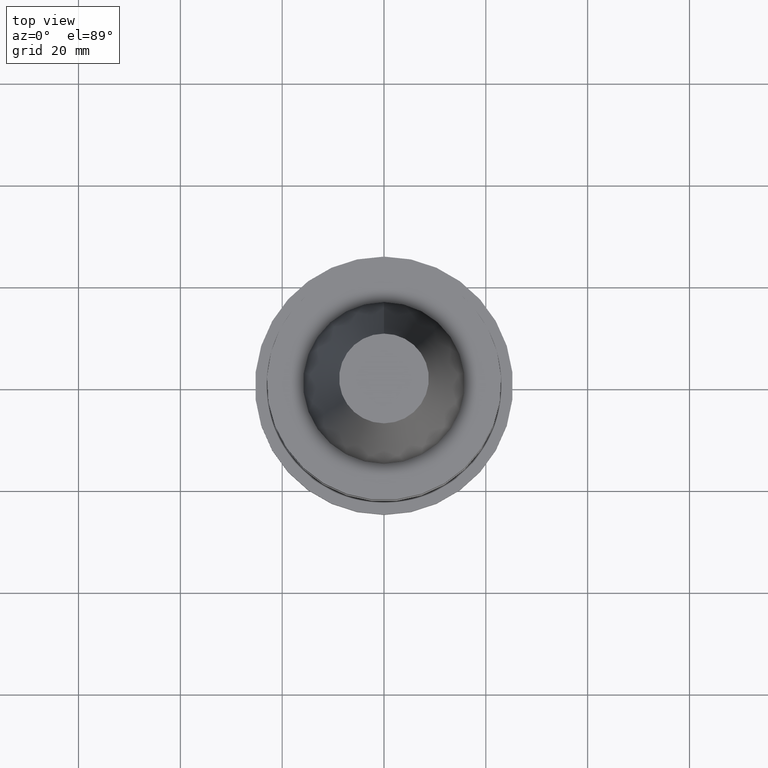
[diagram: clean part render]
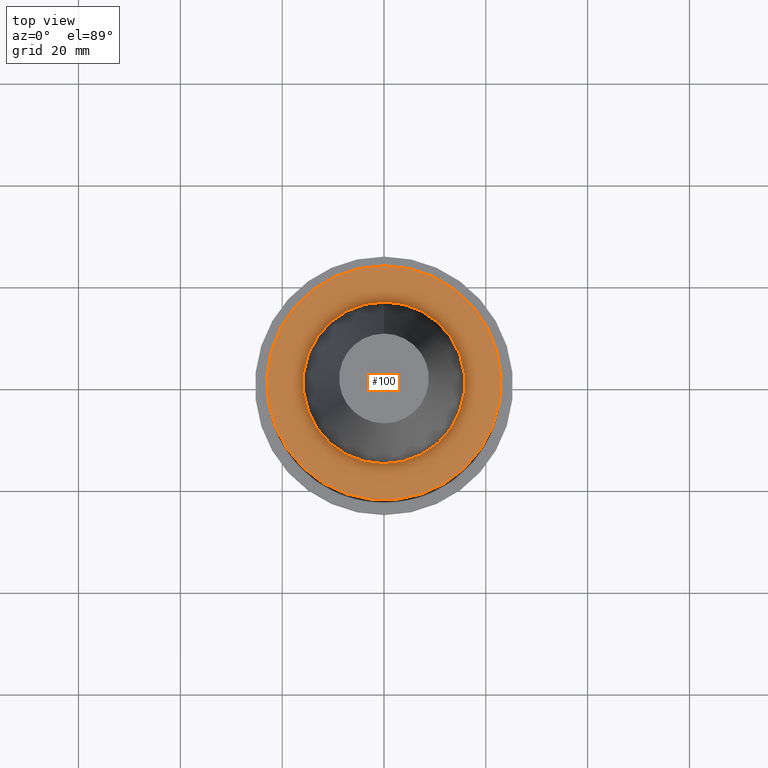
[diagram: same view with one face highlighted and labeled with its STEP entity id]
A machine part, top view. The second image highlights one B-rep face of the part: STEP entity #100.
In plain terms, the highlighted planar face has unit normal (-0, -0, 1).
Its self-contained STEP definition (entity closure, byte-faithful):
#92=EDGE_CURVE('Unnamed[1]',#230,#230,#231,.T.);
#100=ADVANCED_FACE('Unnamed[1]',(#242,#243),#244,.T.);
#121=EDGE_CURVE('Unnamed[1]',#277,#277,#278,.T.);
#230=VERTEX_POINT('',#413);
#231=CIRCLE('',#414,23.0);
#242=FACE_OUTER_BOUND('',#428,.T.);
#243=FACE_BOUND('',#429,.T.);
#244=PLANE('',#430);
#277=VERTEX_POINT('',#471);
#278=CIRCLE('',#472,15.875);
#413=CARTESIAN_POINT('',(6.12323399573674E-017,23.0,-0.999999999999997));
#414=AXIS2_PLACEMENT_3D('',#615,#616,#617);
#428=EDGE_LOOP('',(#628));
#429=EDGE_LOOP('',(#629));
#430=AXIS2_PLACEMENT_3D('',#630,#631,#632);
#471=CARTESIAN_POINT('',(6.12323399573675E-017,15.875,-0.999999999999998));
#472=AXIS2_PLACEMENT_3D('',#669,#670,#671);
#615=CARTESIAN_POINT('',(6.12323399573677E-017,1.22464679914735E-016,-1.0));
#616=DIRECTION('',(6.12323399573677E-017,1.22464679914735E-016,-1.0));
#617=DIRECTION('',(-1.23259516440783E-032,1.0,1.22464679914735E-016));
#628=ORIENTED_EDGE('',*,*,#92,.F.);
#629=ORIENTED_EDGE('',*,*,#121,.T.);
#630=CARTESIAN_POINT('',(6.12323399573674E-017,19.4375,-0.999999999999998));
#631=DIRECTION('',(-6.12323399573677E-017,-1.22464679914735E-016,1.0));
#632=DIRECTION('',(1.23259516440783E-032,-1.0,-1.22464679914735E-016));
#669=CARTESIAN_POINT('',(6.12323399573677E-017,1.22464679914735E-016,-1.0));
#670=DIRECTION('',(6.12323399573677E-017,1.22464679914735E-016,-1.0));
#671=DIRECTION('',(-1.23259516440783E-032,1.0,1.22464679914735E-016));